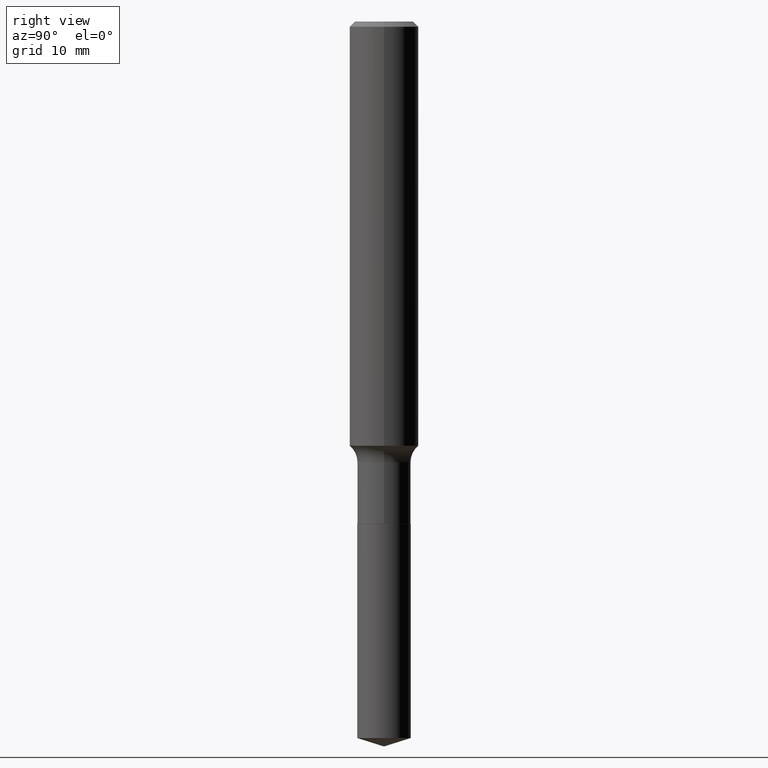
[diagram: clean part render]
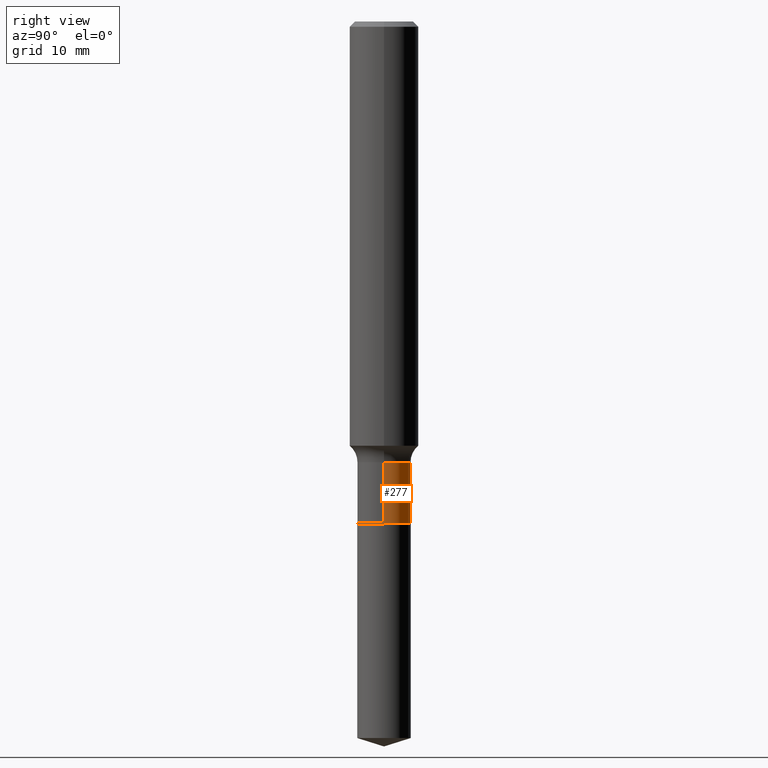
[diagram: same view with one face highlighted and labeled with its STEP entity id]
A machine part, right view. The second image highlights one B-rep face of the part: STEP entity #277.
In plain terms, the highlighted cylindrical surface (edge-blend (fillet) strip) has radius 2.4574 mm, axis along (-0, 0, 1).
Its self-contained STEP definition (entity closure, byte-faithful):
#4 = VERTEX_POINT ( 'NONE', #309 ) ;
#6 = CIRCLE ( 'NONE', #203, 0.09674999999999996103 ) ;
#7 = EDGE_CURVE ( 'NONE', #466, #4, #6, .T. ) ;
#15 = EDGE_CURVE ( 'NONE', #339, #4, #213, .T. ) ;
#40 = AXIS2_PLACEMENT_3D ( 'NONE', #260, #147, #110 ) ;
#52 = ORIENTED_EDGE ( 'NONE', *, *, #55, .F. ) ;
#55 = EDGE_CURVE ( 'NONE', #248, #466, #400, .T. ) ;
#67 = VECTOR ( 'NONE', #322, 39.37007874015748143 ) ;
#78 = DIRECTION ( 'NONE',  ( -2.445468806185136597E-29, 3.491481338843145583E-15, 1.000000000000000000 ) ) ;
#110 = DIRECTION ( 'NONE',  ( 1.000000000000000000, -6.982962677686265922E-15, 0.000000000000000000 ) ) ;
#124 = DIRECTION ( 'NONE',  ( -2.445468806185136597E-29, 3.491481338843145583E-15, 1.000000000000000000 ) ) ;
#144 = CARTESIAN_POINT ( 'NONE',  ( 0.09674999999999996103, -6.756016390661460400E-16, 4.717701030582566422E-30 ) ) ;
#147 = DIRECTION ( 'NONE',  ( -2.445468806185136597E-29, 3.491481338843145583E-15, 1.000000000000000000 ) ) ;
#166 = CYLINDRICAL_SURFACE ( 'NONE', #443, 0.09674999999999996103 ) ;
#174 = ORIENTED_EDGE ( 'NONE', *, *, #7, .F. ) ;
#203 = AXIS2_PLACEMENT_3D ( 'NONE', #463, #124, #385 ) ;
#207 = CARTESIAN_POINT ( 'NONE',  ( 0.09674999999999998879, -7.023114713082984958E-15, -1.818000000000000060 ) ) ;
#213 = LINE ( 'NONE', #441, #67 ) ;
#226 = DIRECTION ( 'NONE',  ( 1.000000000000000000, -6.982962677686266711E-15, 4.876176775795936353E-29 ) ) ;
#231 = ORIENTED_EDGE ( 'NONE', *, *, #15, .T. ) ;
#248 = VERTEX_POINT ( 'NONE', #207 ) ;
#260 = CARTESIAN_POINT ( 'NONE',  ( 4.445862289644578656E-29, -6.347513074016838623E-15, -1.818000000000000060 ) ) ;
#277 = ADVANCED_FACE ( 'NONE', ( #397 ), #166, .T. ) ;
#290 = DIRECTION ( 'NONE',  ( -2.445468806185136877E-29, 3.491481338843145188E-15, 1.000000000000000000 ) ) ;
#309 = CARTESIAN_POINT ( 'NONE',  ( -0.09674999999999996103, -5.272508548557352893E-15, -1.596000000000000085 ) ) ;
#322 = DIRECTION ( 'NONE',  ( -2.445468806185136877E-29, 3.491481338843145188E-15, 1.000000000000000000 ) ) ;
#331 = CARTESIAN_POINT ( 'NONE',  ( 0.000000000000000000, 0.000000000000000000, 0.000000000000000000 ) ) ;
#339 = VERTEX_POINT ( 'NONE', #444 ) ;
#373 = VECTOR ( 'NONE', #290, 39.37007874015748143 ) ;
#385 = DIRECTION ( 'NONE',  ( 1.000000000000000000, -6.982962677686267499E-15, 0.000000000000000000 ) ) ;
#397 = FACE_OUTER_BOUND ( 'NONE', #428, .T. ) ;
#400 = LINE ( 'NONE', #144, #373 ) ;
#416 = EDGE_CURVE ( 'NONE', #248, #339, #472, .T. ) ;
#428 = EDGE_LOOP ( 'NONE', ( #431, #231, #174, #52 ) ) ;
#431 = ORIENTED_EDGE ( 'NONE', *, *, #416, .T. ) ;
#441 = CARTESIAN_POINT ( 'NONE',  ( -0.09674999999999996103, 6.874500968478966529E-16, -4.759069699821619835E-30 ) ) ;
#443 = AXIS2_PLACEMENT_3D ( 'NONE', #331, #78, #226 ) ;
#444 = CARTESIAN_POINT ( 'NONE',  ( -0.09674999999999998879, -5.272508548557352893E-15, -1.818000000000000060 ) ) ;
#452 = CARTESIAN_POINT ( 'NONE',  ( 0.09674999999999996103, -6.248005855859806608E-15, -1.596000000000000085 ) ) ;
#463 = CARTESIAN_POINT ( 'NONE',  ( 3.902968214671478497E-29, -5.572404216793660273E-15, -1.596000000000000085 ) ) ;
#466 = VERTEX_POINT ( 'NONE', #452 ) ;
#472 = CIRCLE ( 'NONE', #40, 0.09674999999999998879 ) ;